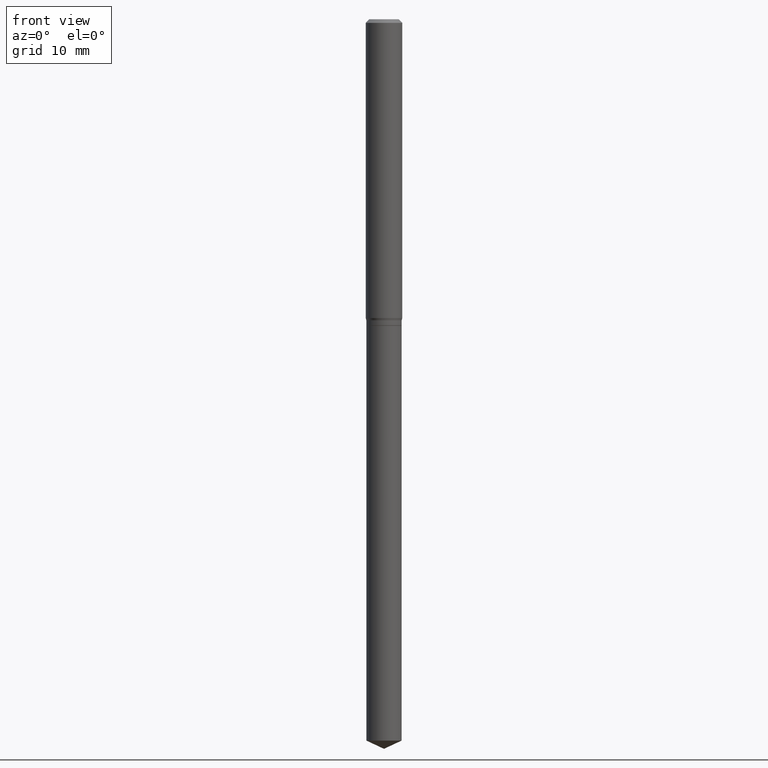
[diagram: clean part render]
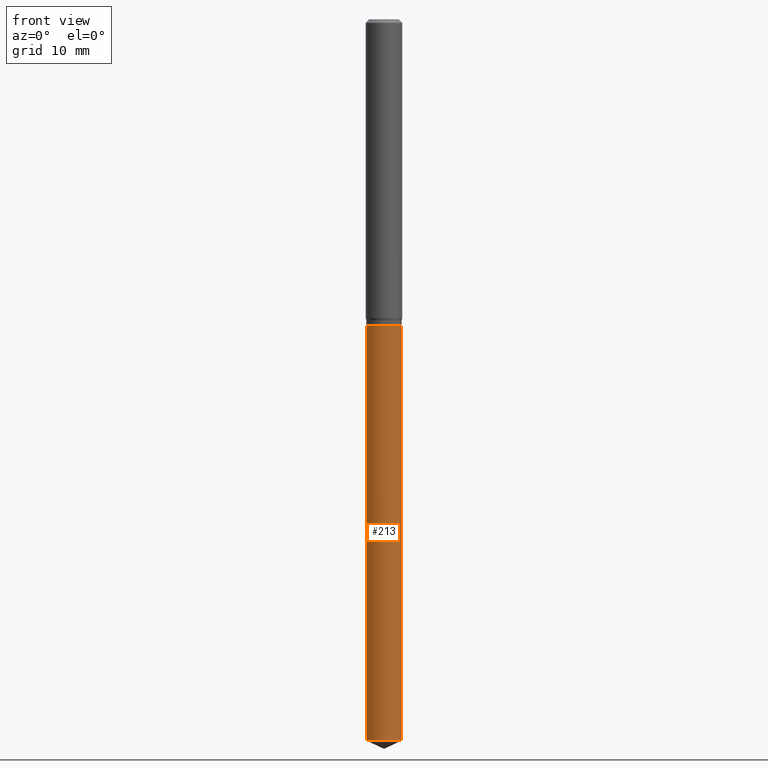
[diagram: same view with one face highlighted and labeled with its STEP entity id]
A machine part, front view. The second image highlights one B-rep face of the part: STEP entity #213.
In plain terms, the highlighted cylindrical surface (edge-blend (fillet) strip) has radius 1.4503 mm, axis along (-0, 0, 1).
Its self-contained STEP definition (entity closure, byte-faithful):
#44 = ORIENTED_EDGE ( 'NONE', *, *, #159, .T. ) ;
#46 = DIRECTION ( 'NONE',  ( -2.445468806185136597E-29, 3.491481338843145583E-15, 1.000000000000000000 ) ) ;
#72 = CARTESIAN_POINT ( 'NONE',  ( 2.425660508855036352E-29, -3.463200339998515253E-15, -0.9918999999999997819 ) ) ;
#76 = CARTESIAN_POINT ( 'NONE',  ( 2.425660508855035791E-29, -3.463200339998514464E-15, -0.9918999999999995598 ) ) ;
#84 = CARTESIAN_POINT ( 'NONE',  ( -0.05709999999999998410, -7.748194254043186871E-15, -2.335373832719350062 ) ) ;
#87 = LINE ( 'NONE', #419, #162 ) ;
#92 = EDGE_CURVE ( 'NONE', #351, #371, #224, .T. ) ;
#98 = ORIENTED_EDGE ( 'NONE', *, *, #401, .F. ) ;
#119 = DIRECTION ( 'NONE',  ( -2.445468806185136877E-29, 3.491481338843145188E-15, 1.000000000000000000 ) ) ;
#131 = AXIS2_PLACEMENT_3D ( 'NONE', #76, #381, #204 ) ;
#140 = AXIS2_PLACEMENT_3D ( 'NONE', #72, #225, #337 ) ;
#159 = EDGE_CURVE ( 'NONE', #351, #307, #342, .T. ) ;
#162 = VECTOR ( 'NONE', #119, 39.37007874015748143 ) ;
#170 = VECTOR ( 'NONE', #372, 39.37007874015748143 ) ;
#180 = ORIENTED_EDGE ( 'NONE', *, *, #252, .T. ) ;
#204 = DIRECTION ( 'NONE',  ( 1.000000000000000000, -6.982962677686268288E-15, 0.000000000000000000 ) ) ;
#213 = ADVANCED_FACE ( 'NONE', ( #227 ), #411, .T. ) ;
#218 = VERTEX_POINT ( 'NONE', #262 ) ;
#224 = LINE ( 'NONE', #257, #170 ) ;
#225 = DIRECTION ( 'NONE',  ( -2.445468806185136597E-29, 3.491481338843145583E-15, 1.000000000000000000 ) ) ;
#227 = FACE_OUTER_BOUND ( 'NONE', #474, .T. ) ;
#252 = EDGE_CURVE ( 'NONE', #307, #218, #87, .T. ) ;
#257 = CARTESIAN_POINT ( 'NONE',  ( -0.05709999999999999798, -3.057480437879497765E-15, -0.9918999999999997819 ) ) ;
#262 = CARTESIAN_POINT ( 'NONE',  ( 0.05709999999999999798, -3.861927508894400867E-15, -0.9918999999999995598 ) ) ;
#299 = CIRCLE ( 'NONE', #131, 0.05709999999999999798 ) ;
#306 = CARTESIAN_POINT ( 'NONE',  ( 0.05709999999999998410, -8.552641325058090762E-15, -2.335373832719350062 ) ) ;
#307 = VERTEX_POINT ( 'NONE', #306 ) ;
#337 = DIRECTION ( 'NONE',  ( 1.000000000000000000, -6.982962677686268288E-15, 0.000000000000000000 ) ) ;
#342 = CIRCLE ( 'NONE', #405, 0.05709999999999999798 ) ;
#350 = CARTESIAN_POINT ( 'NONE',  ( 5.711083858696195473E-29, -8.153914156162205147E-15, -2.335373832719350062 ) ) ;
#351 = VERTEX_POINT ( 'NONE', #84 ) ;
#371 = VERTEX_POINT ( 'NONE', #413 ) ;
#372 = DIRECTION ( 'NONE',  ( -2.445468806185136877E-29, 3.491481338843145188E-15, 1.000000000000000000 ) ) ;
#381 = DIRECTION ( 'NONE',  ( -2.445468806185136597E-29, 3.491481338843145583E-15, 1.000000000000000000 ) ) ;
#401 = EDGE_CURVE ( 'NONE', #371, #218, #299, .T. ) ;
#405 = AXIS2_PLACEMENT_3D ( 'NONE', #350, #46, #443 ) ;
#411 = CYLINDRICAL_SURFACE ( 'NONE', #140, 0.05709999999999999798 ) ;
#413 = CARTESIAN_POINT ( 'NONE',  ( -0.05709999999999999798, -5.402837345961341135E-15, -0.9918999999999995598 ) ) ;
#419 = CARTESIAN_POINT ( 'NONE',  ( 0.05709999999999999798, -3.861927508894400867E-15, -0.9918999999999997819 ) ) ;
#443 = DIRECTION ( 'NONE',  ( 1.000000000000000000, -6.982962677686259611E-15, 0.000000000000000000 ) ) ;
#474 = EDGE_LOOP ( 'NONE', ( #475, #44, #180, #98 ) ) ;
#475 = ORIENTED_EDGE ( 'NONE', *, *, #92, .F. ) ;